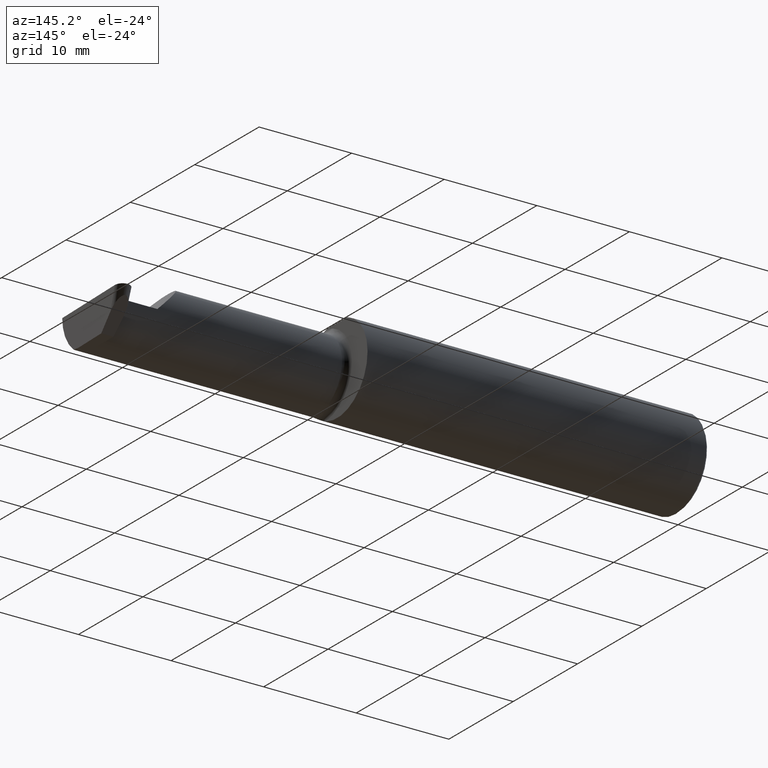
[diagram: clean part render]
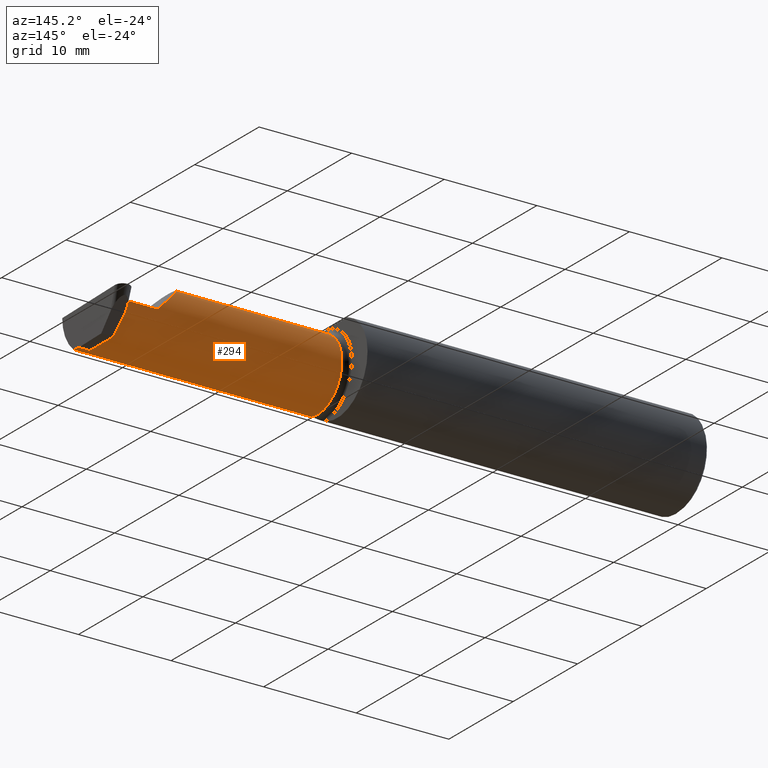
[diagram: same view with one face highlighted and labeled with its STEP entity id]
A machine part, auxiliary view. The second image highlights one B-rep face of the part: STEP entity #294.
In plain terms, the highlighted cylindrical surface (partial cylindrical patch) has radius 3.81 mm, axis along (-1, -0, -0).
Its self-contained STEP definition (entity closure, byte-faithful):
#15 = CARTESIAN_POINT ( 'NONE',  ( 2.439954497345508511, 0.06655862405284596051, -0.005234924505382013322 ) ) ;
#32 =( BOUNDED_CURVE ( )  B_SPLINE_CURVE ( 3, ( #288, #404, #246, #303 ),
 .UNSPECIFIED., .F., .T. ) 
 B_SPLINE_CURVE_WITH_KNOTS ( ( 4, 4 ),
 ( 0.8789888184544043526, 1.107026853503847663 ),
 .UNSPECIFIED. ) 
 CURVE ( )  GEOMETRIC_REPRESENTATION_ITEM ( )  RATIONAL_B_SPLINE_CURVE ( ( 1.000000000000000000, 0.9956712472009929815, 0.9956712472009929815, 1.000000000000000000 ) ) 
 REPRESENTATION_ITEM ( '' )  );
#33 = CARTESIAN_POINT ( 'NONE',  ( 2.733184360054361939, -0.08335000000000003517, -0.1500000000000000500 ) ) ;
#69 = EDGE_CURVE ( 'NONE', #332, #187, #491, .T. ) ;
#86 = DIRECTION ( 'NONE',  ( -1.000000000000000000, -5.190412334829047496E-17, -0.000000000000000000 ) ) ;
#95 = CARTESIAN_POINT ( 'NONE',  ( 2.113883229301068312, -0.1172600179964011224, 0.1461167706989300596 ) ) ;
#102 = AXIS2_PLACEMENT_3D ( 'NONE', #462, #540, #643 ) ;
#118 = LINE ( 'NONE', #33, #527 ) ;
#121 =( BOUNDED_CURVE ( )  B_SPLINE_CURVE ( 3, ( #274, #641, #488, #263 ),
 .UNSPECIFIED., .F., .F. ) 
 B_SPLINE_CURVE_WITH_KNOTS ( ( 4, 4 ),
 ( 3.159045946109733549, 4.694935687864693286 ),
 .UNSPECIFIED. ) 
 CURVE ( )  GEOMETRIC_REPRESENTATION_ITEM ( )  RATIONAL_B_SPLINE_CURVE ( ( 1.000000000000000000, 0.8128932002257790446, 0.8128932002257790446, 1.000000000000000000 ) ) 
 REPRESENTATION_ITEM ( '' )  );
#126 = CARTESIAN_POINT ( 'NONE',  ( 2.442617647571764028, -0.08334999999999999354, -0.1500000000000000500 ) ) ;
#146 = LINE ( 'NONE', #477, #356 ) ;
#156 = EDGE_CURVE ( 'NONE', #283, #289, #576, .T. ) ;
#187 = VERTEX_POINT ( 'NONE', #616 ) ;
#197 = CARTESIAN_POINT ( 'NONE',  ( 2.430647848035137226, 0.06655862405286419592, -0.005234924505380427785 ) ) ;
#198 = EDGE_CURVE ( 'NONE', #701, #454, #32, .T. ) ;
#199 = VERTEX_POINT ( 'NONE', #126 ) ;
#217 = VECTOR ( 'NONE', #86, 39.37007874015748143 ) ;
#246 = CARTESIAN_POINT ( 'NONE',  ( 2.488744025780163405, -0.09477667630339423055, -0.1499999999999999944 ) ) ;
#247 = ORIENTED_EDGE ( 'NONE', *, *, #338, .F. ) ;
#252 = CIRCLE ( 'NONE', #102, 0.1499999999999999944 ) ;
#253 = EDGE_CURVE ( 'NONE', #454, #199, #118, .T. ) ;
#263 = CARTESIAN_POINT ( 'NONE',  ( 2.439954497345508511, 0.06655862405284596051, -0.005234924505382013322 ) ) ;
#265 = CARTESIAN_POINT ( 'NONE',  ( 2.113883229301068312, -0.1172600179964011224, 0.1461167706989300596 ) ) ;
#274 = CARTESIAN_POINT ( 'NONE',  ( 2.442617647571764028, -0.08334999999999999354, -0.1500000000000000500 ) ) ;
#275 = EDGE_CURVE ( 'NONE', #427, #187, #624, .T. ) ;
#277 = CARTESIAN_POINT ( 'NONE',  ( 2.430647848035137226, 0.06655862405286419592, -0.005234924505380427785 ) ) ;
#282 = CARTESIAN_POINT ( 'NONE',  ( 2.430678306684182832, 0.06658908270190942724, -0.003489949670253620836 ) ) ;
#283 = VERTEX_POINT ( 'NONE', #376 ) ;
#284 = EDGE_CURVE ( 'NONE', #701, #320, #365, .T. ) ;
#288 = CARTESIAN_POINT ( 'NONE',  ( 2.488026713523223243, -0.1172600179964006090, -0.1461167706989303650 ) ) ;
#289 = VERTEX_POINT ( 'NONE', #95 ) ;
#294 = ADVANCED_FACE ( 'NONE', ( #591 ), #469, .T. ) ;
#301 = ORIENTED_EDGE ( 'NONE', *, *, #703, .F. ) ;
#303 = CARTESIAN_POINT ( 'NONE',  ( 2.489143054109411057, -0.08335000000000003517, -0.1500000000000000500 ) ) ;
#306 = CARTESIAN_POINT ( 'NONE',  ( 2.488026713523223243, -0.1172600179964006090, -0.1461167706989303650 ) ) ;
#307 = DIRECTION ( 'NONE',  ( -1.000000000000000000, -5.190412334829047496E-17, -0.000000000000000000 ) ) ;
#312 = ORIENTED_EDGE ( 'NONE', *, *, #156, .T. ) ;
#315 = CARTESIAN_POINT ( 'NONE',  ( 2.090221225029926355, -0.01530148607434194015, 0.1697787749700729321 ) ) ;
#317 = EDGE_CURVE ( 'NONE', #289, #427, #324, .T. ) ;
#320 = VERTEX_POINT ( 'NONE', #586 ) ;
#323 = ORIENTED_EDGE ( 'NONE', *, *, #198, .F. ) ;
#324 =( BOUNDED_CURVE ( )  B_SPLINE_CURVE ( 3, ( #265, #315, #630, #692 ),
 .UNSPECIFIED., .F., .T. ) 
 B_SPLINE_CURVE_WITH_KNOTS ( ( 4, 4 ),
 ( 6.055147272130139591, 7.853981633974482790 ),
 .UNSPECIFIED. ) 
 CURVE ( )  GEOMETRIC_REPRESENTATION_ITEM ( )  RATIONAL_B_SPLINE_CURVE ( ( 1.000000000000000000, 0.7480442670255260662, 0.7480442670255260662, 1.000000000000000000 ) ) 
 REPRESENTATION_ITEM ( '' )  );
#331 = CARTESIAN_POINT ( 'NONE',  ( 2.430708765333227994, 0.06661954135095468632, -0.001744974835126810201 ) ) ;
#332 = VERTEX_POINT ( 'NONE', #197 ) ;
#338 = EDGE_CURVE ( 'NONE', #283, #320, #252, .T. ) ;
#341 = DIRECTION ( 'NONE',  ( -1.000000000000000000, -0.000000000000000000, -0.000000000000000000 ) ) ;
#350 = DIRECTION ( 'NONE',  ( 1.000000000000000000, 5.190412334829047496E-17, 0.000000000000000000 ) ) ;
#356 = VECTOR ( 'NONE', #307, 39.37007874015748143 ) ;
#365 = LINE ( 'NONE', #648, #217 ) ;
#369 = CARTESIAN_POINT ( 'NONE',  ( 1.450000000000000178, -0.08335000000000004905, 0.000000000000000000 ) ) ;
#371 = EDGE_CURVE ( 'NONE', #405, #332, #146, .T. ) ;
#376 = CARTESIAN_POINT ( 'NONE',  ( 1.474999999999999867, -0.1172600179964005812, 0.1461167706989303927 ) ) ;
#380 = EDGE_LOOP ( 'NONE', ( #620, #247, #312, #387, #592, #587, #568, #301, #428, #323 ) ) ;
#387 = ORIENTED_EDGE ( 'NONE', *, *, #317, .T. ) ;
#399 = VECTOR ( 'NONE', #687, 39.37007874015748143 ) ;
#404 = CARTESIAN_POINT ( 'NONE',  ( 2.488370294460939824, -0.1061291577212409298, -0.1486999626928446339 ) ) ;
#405 = VERTEX_POINT ( 'NONE', #15 ) ;
#427 = VERTEX_POINT ( 'NONE', #661 ) ;
#428 = ORIENTED_EDGE ( 'NONE', *, *, #253, .F. ) ;
#454 = VERTEX_POINT ( 'NONE', #489 ) ;
#462 = CARTESIAN_POINT ( 'NONE',  ( 1.474999999999999867, -0.08335000000000004905, 0.000000000000000000 ) ) ;
#469 = CYLINDRICAL_SURFACE ( 'NONE', #640, 0.1499999999999999944 ) ;
#477 = CARTESIAN_POINT ( 'NONE',  ( 1.449999999999999067, 0.06655862405284956873, -0.005234924505797897663 ) ) ;
#483 = DIRECTION ( 'NONE',  ( -1.000000000000000000, -5.190412334829046880E-17, -0.000000000000000000 ) ) ;
#488 = CARTESIAN_POINT ( 'NONE',  ( 2.441498648347320888, 0.06357628547474596103, -0.09063792740366179157 ) ) ;
#489 = CARTESIAN_POINT ( 'NONE',  ( 2.489143054109411057, -0.08335000000000003517, -0.1500000000000000500 ) ) ;
#491 = B_SPLINE_CURVE_WITH_KNOTS ( 'NONE', 3,
 ( #277, #282, #331, #501 ),
 .UNSPECIFIED., .F., .F.,
 ( 4, 4 ),
 ( 0.000000000000000000, 1.000000000000000000 ),
 .UNSPECIFIED. ) ;
#501 = CARTESIAN_POINT ( 'NONE',  ( 2.430739223982273156, 0.06664999999999991764, 0.000000000000000000 ) ) ;
#509 = CARTESIAN_POINT ( 'NONE',  ( 1.955930449999999876, -0.1172600179964006506, 0.1461167706989303650 ) ) ;
#527 = VECTOR ( 'NONE', #341, 39.37007874015748143 ) ;
#536 = CARTESIAN_POINT ( 'NONE',  ( 1.450000000000000178, 0.06664999999999995928, 1.285879139104721225E-16 ) ) ;
#540 = DIRECTION ( 'NONE',  ( -1.000000000000000000, -5.190412334829046880E-17, -0.000000000000000000 ) ) ;
#568 = ORIENTED_EDGE ( 'NONE', *, *, #371, .F. ) ;
#576 = LINE ( 'NONE', #509, #675 ) ;
#586 = CARTESIAN_POINT ( 'NONE',  ( 1.474999999999999867, -0.1172600179964005812, -0.1461167706989303650 ) ) ;
#587 = ORIENTED_EDGE ( 'NONE', *, *, #69, .F. ) ;
#591 = FACE_OUTER_BOUND ( 'NONE', #380, .T. ) ;
#592 = ORIENTED_EDGE ( 'NONE', *, *, #275, .T. ) ;
#616 = CARTESIAN_POINT ( 'NONE',  ( 2.430739223982273156, 0.06664999999999991764, 0.000000000000000000 ) ) ;
#620 = ORIENTED_EDGE ( 'NONE', *, *, #284, .T. ) ;
#624 = LINE ( 'NONE', #536, #399 ) ;
#630 = CARTESIAN_POINT ( 'NONE',  ( 2.155331797197862720, 0.06664999999999998703, 0.1046682028021363453 ) ) ;
#637 = DIRECTION ( 'NONE',  ( 0.000000000000000000, -1.000000000000000000, 0.000000000000000000 ) ) ;
#640 = AXIS2_PLACEMENT_3D ( 'NONE', #369, #483, #637 ) ;
#641 = CARTESIAN_POINT ( 'NONE',  ( 2.442590694315768474, 0.002105059811798098198, -0.1500000000000000500 ) ) ;
#643 = DIRECTION ( 'NONE',  ( 0.000000000000000000, -1.000000000000000000, 0.000000000000000000 ) ) ;
#648 = CARTESIAN_POINT ( 'NONE',  ( 1.955930449999999876, -0.1172600179964006506, -0.1461167706989303650 ) ) ;
#661 = CARTESIAN_POINT ( 'NONE',  ( 2.260000000000000231, 0.06665000000000000091, 1.285879139104721225E-16 ) ) ;
#675 = VECTOR ( 'NONE', #350, 39.37007874015748143 ) ;
#687 = DIRECTION ( 'NONE',  ( 1.000000000000000000, 5.190412334829047496E-17, 0.000000000000000000 ) ) ;
#692 = CARTESIAN_POINT ( 'NONE',  ( 2.260000000000000231, 0.06665000000000000091, 1.285879139104721225E-16 ) ) ;
#701 = VERTEX_POINT ( 'NONE', #306 ) ;
#703 = EDGE_CURVE ( 'NONE', #199, #405, #121, .T. ) ;